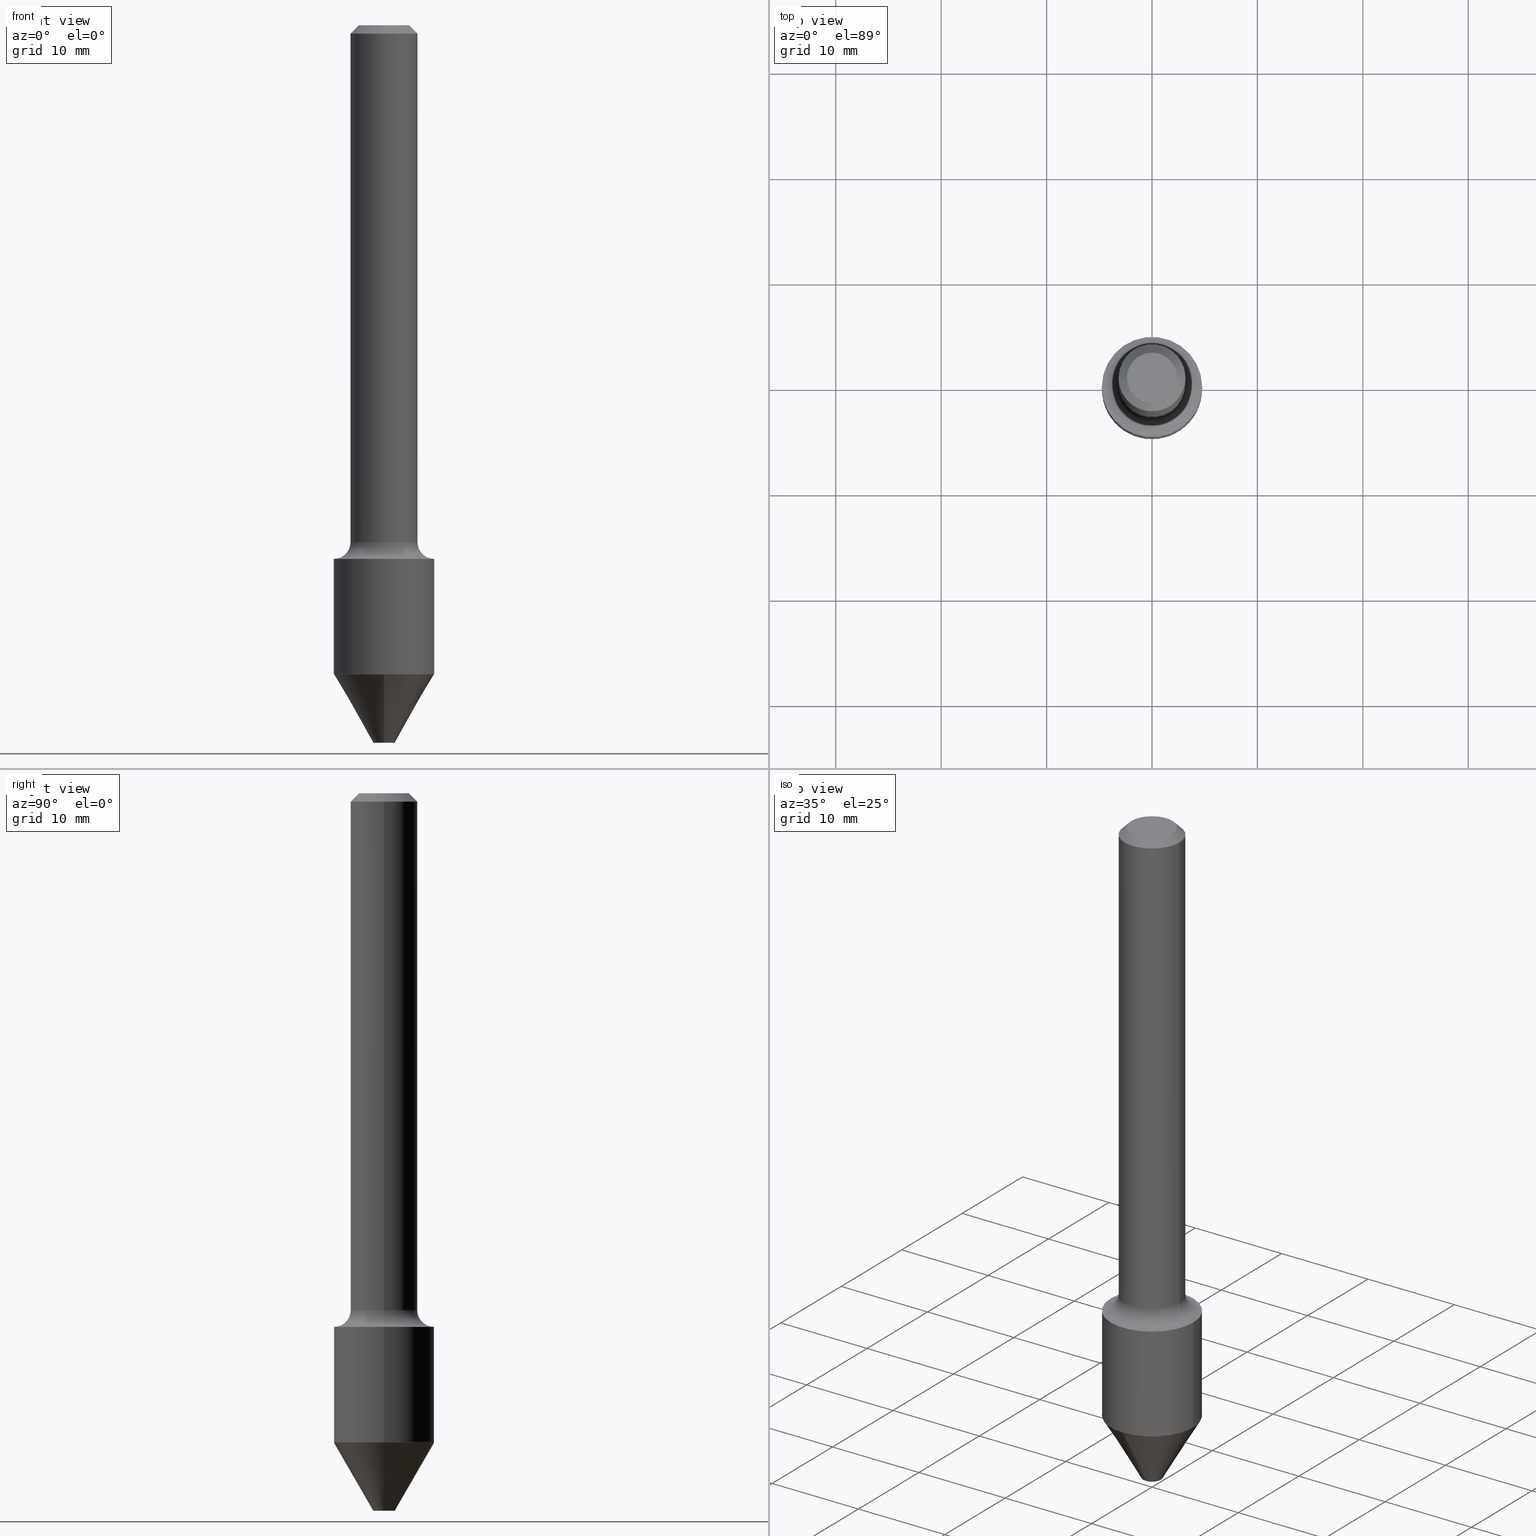
[diagram: canonical four-view strip — front | top / right | iso, engineering-drawing reading convention]
A machine part, canonical four-view strip (front | top / right | iso — engineering-drawing reading convention). The complete STEP part file that produces these views, byte-faithful:
ISO-10303-21;
HEADER;
FILE_DESCRIPTION (( 'STEP AP203' ),
    '1' );
FILE_NAME ('74158.STEP',
    '2025-06-20T12:29:18',
    ( '' ),
    ( '' ),
    'SwSTEP 2.0',
    'SolidWorks 2024',
    '' );
FILE_SCHEMA (( 'CONFIG_CONTROL_DESIGN' ));
ENDSEC;

DATA;
#1 = ORIENTED_EDGE ( 'NONE', *, *, #184, .F. ) ;
#2 = ORIENTED_EDGE ( 'NONE', *, *, #460, .T. ) ;
#3 = DIRECTION ( 'NONE',  ( 1.000000000000000000, 0.000000000000000000, 0.000000000000000000 ) ) ;
#4 = ORIENTED_EDGE ( 'NONE', *, *, #159, .T. ) ;
#5 = EDGE_CURVE ( 'NONE', #251, #61, #124, .T. ) ;
#6 = APPROVAL_STATUS ( 'not_yet_approved' ) ;
#7 = ORIENTED_EDGE ( 'NONE', *, *, #342, .F. ) ;
#8 = CIRCLE ( 'NONE', #180, 0.1874999999999999445 ) ;
#9 = CONICAL_SURFACE ( 'NONE', #277, 0.1869999999999999440, 0.7853981633975849475 ) ;
#10 = PERSON_AND_ORGANIZATION_ROLE ( 'creator' ) ;
#11 = CARTESIAN_POINT ( 'NONE',  ( 5.864729909042874648E-29, -8.553851586907751688E-15, -2.424022505883614897 ) ) ;
#12 = DIRECTION ( 'NONE',  ( 6.982962677686265133E-15, 1.000000000000000000, -2.921762560068727834E-15 ) ) ;
#13 = ORIENTED_EDGE ( 'NONE', *, *, #314, .F. ) ;
#14 = ORIENTED_EDGE ( 'NONE', *, *, #491, .T. ) ;
#15 = FACE_OUTER_BOUND ( 'NONE', #378, .T. ) ;
#16 = ORIENTED_EDGE ( 'NONE', *, *, #5, .F. ) ;
#17 = PRODUCT_DEFINITION_SHAPE ( 'NONE', 'NONE',  #261 ) ;
#18 = DIRECTION ( 'NONE',  ( 1.000000000000000000, -6.982962677686261977E-15, 0.000000000000000000 ) ) ;
#19 = DIRECTION ( 'NONE',  ( -1.000000000000000000, 6.982962677686266711E-15, 0.000000000000000000 ) ) ;
#20 = AXIS2_PLACEMENT_3D ( 'NONE', #113, #279, #48 ) ;
#21 = EDGE_CURVE ( 'NONE', #61, #251, #110, .T. ) ;
#22 = CLOSED_SHELL ( 'NONE', ( #452, #489, #315, #150, #87, #166 ) ) ;
#23 = CARTESIAN_POINT ( 'NONE',  ( 7.629862675297676574E-31, -1.089342177719068640E-16, -0.03120000000000020673 ) ) ;
#24 = CARTESIAN_POINT ( 'NONE',  ( 0.09379999999999999449, -8.050055898421590350E-16, -1.530808498933680906E-17 ) ) ;
#25 = DIRECTION ( 'NONE',  ( -2.445468806185136597E-29, 3.491481338843145583E-15, 1.000000000000000000 ) ) ;
#26 = EDGE_CURVE ( 'NONE', #53, #495, #51, .T. ) ;
#27 = CARTESIAN_POINT ( 'NONE',  ( 1.305814020727391757E-15, 0.1869999999999916451, -2.424022505883615342 ) ) ;
#28 = CIRCLE ( 'NONE', #121, 0.1870000000000001938 ) ;
#29 = PERSON_AND_ORGANIZATION ( #131, #181 ) ;
#30 = AXIS2_PLACEMENT_3D ( 'NONE', #440, #280, #123 ) ;
#31 = FACE_OUTER_BOUND ( 'NONE', #354, .T. ) ;
#32 = CYLINDRICAL_SURFACE ( 'NONE', #116, 0.1874999999999999722 ) ;
#33 = VERTEX_POINT ( 'NONE', #187 ) ;
#34 = CIRCLE ( 'NONE', #374, 0.09379999999999999449 ) ;
#35 = DIRECTION ( 'NONE',  ( 6.982962677686265922E-15, 1.000000000000000000, -3.285367342612894340E-15 ) ) ;
#36 = LOCAL_TIME ( 8, 29, 18.00000000000000000, #54 ) ;
#37 = CC_DESIGN_PERSON_AND_ORGANIZATION_ASSIGNMENT ( #179, #327, ( #295 ) ) ;
#38 = CARTESIAN_POINT ( 'NONE',  ( -0.1250000000000001110, 8.881784197001260212E-16, -6.148668862818637832E-30 ) ) ;
#39 = APPROVAL_DATE_TIME ( #473, #406 ) ;
#40 = APPROVAL_STATUS ( 'not_yet_approved' ) ;
#41 = DIRECTION ( 'NONE',  ( 3.552713678800714711E-15, 0.5000000000000361933, 0.8660254037844177244 ) ) ;
#42 = EDGE_CURVE ( 'NONE', #415, #251, #504, .T. ) ;
#43 = CALENDAR_DATE ( 2025, 20, 6 ) ;
#44 = CONICAL_SURFACE ( 'NONE', #407, 0.1869999999999999440, 0.7853981633975849475 ) ;
#45 = VERTEX_POINT ( 'NONE', #496 ) ;
#46 =( NAMED_UNIT ( * ) PLANE_ANGLE_UNIT ( ) SI_UNIT ( $, .RADIAN. ) );
#47 = DIRECTION ( 'NONE',  ( -2.445468806185136877E-29, 3.491481338843145188E-15, 1.000000000000000000 ) ) ;
#48 = DIRECTION ( 'NONE',  ( -6.982962677686267499E-15, -1.000000000000000000, 0.000000000000000000 ) ) ;
#49 = ORIENTED_EDGE ( 'NONE', *, *, #316, .F. ) ;
#50 = CARTESIAN_POINT ( 'NONE',  ( -0.1250000000000002498, -5.739190491850385263E-15, -1.930500000000000549 ) ) ;
#51 = LINE ( 'NONE', #377, #86 ) ;
#52 = CARTESIAN_POINT ( 'NONE',  ( -0.1250000000000000000, 7.639361169388764871E-16, -0.03120000000000020673 ) ) ;
#53 = VERTEX_POINT ( 'NONE', #286 ) ;
#54 = COORDINATED_UNIVERSAL_TIME_OFFSET ( 5, 0, .BEHIND. ) ;
#55 = ORIENTED_EDGE ( 'NONE', *, *, #184, .T. ) ;
#56 = CARTESIAN_POINT ( 'NONE',  ( 0.1874999999999999722, -1.309305502066174811E-15, 9.142831454617378210E-30 ) ) ;
#57 = ORIENTED_EDGE ( 'NONE', *, *, #419, .F. ) ;
#58 = CIRCLE ( 'NONE', #200, 0.1869999999999999440 ) ;
#59 = CONICAL_SURFACE ( 'NONE', #30, 0.1874999999999999445, 0.5235987755983373404 ) ;
#60 = DIRECTION ( 'NONE',  ( -4.851104656541626129E-15, -0.7071067811866464936, -0.7071067811864485408 ) ) ;
#61 = VERTEX_POINT ( 'NONE', #446 ) ;
#62 = CARTESIAN_POINT ( 'NONE',  ( 0.000000000000000000, 0.000000000000000000, 0.000000000000000000 ) ) ;
#63 = ORIENTED_EDGE ( 'NONE', *, *, #42, .T. ) ;
#64 = ADVANCED_FACE ( 'NONE', ( #412 ), #349, .F. ) ;
#65 = ORIENTED_EDGE ( 'NONE', *, *, #480, .F. ) ;
#66 = ADVANCED_FACE ( 'NONE', ( #385 ), #508, .T. ) ;
#67 = FACE_OUTER_BOUND ( 'NONE', #188, .T. ) ;
#68 = CONICAL_SURFACE ( 'NONE', #355, 0.1870000000000001938, 0.7853981633975849475 ) ;
#69 = ADVANCED_FACE ( 'NONE', ( #390 ), #474, .F. ) ;
#70 = DIRECTION ( 'NONE',  ( 1.000000000000000000, -6.982962677686267499E-15, 4.883557194083113462E-29 ) ) ;
#71 = EDGE_CURVE ( 'NONE', #88, #482, #328, .T. ) ;
#72 = DIRECTION ( 'NONE',  ( -2.589397440487598064E-29, 3.285367342612894340E-15, 1.000000000000000000 ) ) ;
#73 = CARTESIAN_POINT ( 'NONE',  ( -1.900850965778914707E-28, -4.596393310320073296E-14, -2.680000000000001048 ) ) ;
#74 = LINE ( 'NONE', #27, #153 ) ;
#75 = CIRCLE ( 'NONE', #430, 0.1250000000000000000 ) ;
#76 = CC_DESIGN_PERSON_AND_ORGANIZATION_ASSIGNMENT ( #257, #274, ( #346 ) ) ;
#77 = DIRECTION ( 'NONE',  ( 1.000000000000000000, -6.982962677686264344E-15, 0.000000000000000000 ) ) ;
#78 = EDGE_CURVE ( 'NONE', #288, #53, #132, .T. ) ;
#79 = LINE ( 'NONE', #357, #486 ) ;
#80 = ORIENTED_EDGE ( 'NONE', *, *, #21, .F. ) ;
#81 = AXIS2_PLACEMENT_3D ( 'NONE', #269, #343, #309 ) ;
#82 = CARTESIAN_POINT ( 'NONE',  ( 7.629862675297676574E-31, -1.089342177719068640E-16, -0.03120000000000020673 ) ) ;
#83 = LOCAL_TIME ( 8, 29, 18.00000000000000000, #158 ) ;
#84 = ADVANCED_FACE ( 'NONE', ( #67 ), #404, .T. ) ;
#85 = DATE_AND_TIME ( #437, #389 ) ;
#86 = VECTOR ( 'NONE', #60, 39.37007874015748143 ) ;
#87 = ADVANCED_FACE ( 'NONE', ( #31 ), #434, .T. ) ;
#88 = VERTEX_POINT ( 'NONE', #24 ) ;
#89 = VERTEX_POINT ( 'NONE', #115 ) ;
#90 = DIRECTION ( 'NONE',  ( 1.000000000000000000, -6.982962677686266711E-15, 4.876421767504995250E-29 ) ) ;
#91 = CARTESIAN_POINT ( 'NONE',  ( 1.307559761396812669E-15, 0.1869999999999916451, -2.424022505883615342 ) ) ;
#92 = DIRECTION ( 'NONE',  ( -6.982962677686265133E-15, -1.000000000000000000, 2.921762560068727834E-15 ) ) ;
#93 = TOROIDAL_SURFACE ( 'NONE', #382, 0.1874999999999999722, 0.06249999999999970857 ) ;
#94 = ORIENTED_EDGE ( 'NONE', *, *, #342, .T. ) ;
#95 = APPLICATION_PROTOCOL_DEFINITION ( 'international standard', 'config_control_design', 1994, #398 ) ;
#96 = CARTESIAN_POINT ( 'NONE',  ( 4.873819330726977897E-29, -6.958522308314390115E-15, -1.993000000000000327 ) ) ;
#97 = ORIENTED_EDGE ( 'NONE', *, *, #353, .F. ) ;
#98 = DATE_AND_TIME ( #449, #36 ) ;
#99 = DIRECTION ( 'NONE',  ( -2.445468806185136597E-29, 3.491481338843145583E-15, 1.000000000000000000 ) ) ;
#100 = ORIENTED_EDGE ( 'NONE', *, *, #42, .F. ) ;
#101 = ORIENTED_EDGE ( 'NONE', *, *, #78, .F. ) ;
#102 = FACE_OUTER_BOUND ( 'NONE', #139, .T. ) ;
#103 = EDGE_LOOP ( 'NONE', ( #176, #178 ) ) ;
#104 = CONICAL_SURFACE ( 'NONE', #242, 0.1250000000000000000, 0.7853981633974452814 ) ;
#105 = DIRECTION ( 'NONE',  ( 1.000000000000000000, -6.982962677686266711E-15, 0.000000000000000000 ) ) ;
#106 = DIRECTION ( 'NONE',  ( 6.982962677686265133E-15, 1.000000000000000000, -2.921762560068727834E-15 ) ) ;
#107 = AXIS2_PLACEMENT_3D ( 'NONE', #463, #347, #190 ) ;
#108 = DIRECTION ( 'NONE',  ( -2.445468806185136597E-29, 3.491481338843145583E-15, 1.000000000000000000 ) ) ;
#109 = SECURITY_CLASSIFICATION ( '', '', #312 ) ;
#110 = CIRCLE ( 'NONE', #307, 0.1874999999999999722 ) ;
#111 = DIRECTION ( 'NONE',  ( 1.000000000000000000, -6.982962677686265922E-15, 4.876176775795935793E-29 ) ) ;
#112 = CARTESIAN_POINT ( 'NONE',  ( 5.927871423629107116E-29, -8.463429344228440066E-15, -2.424022505883614897 ) ) ;
#113 = CARTESIAN_POINT ( 'NONE',  ( 6.527557377130273734E-29, -9.394831686521610282E-15, -2.680000000000001048 ) ) ;
#114 = CARTESIAN_POINT ( 'NONE',  ( 4.720977530340407980E-29, -6.740304724636694281E-15, -1.930500000000000549 ) ) ;
#115 = CARTESIAN_POINT ( 'NONE',  ( 8.082423619271767035E-16, 0.03999999999999077210, -2.680000000000001048 ) ) ;
#116 = AXIS2_PLACEMENT_3D ( 'NONE', #119, #469, #313 ) ;
#117 = PERSON_AND_ORGANIZATION ( #131, #181 ) ;
#118 = EDGE_CURVE ( 'NONE', #454, #495, #216, .T. ) ;
#119 = CARTESIAN_POINT ( 'NONE',  ( 0.000000000000000000, 0.000000000000000000, 0.000000000000000000 ) ) ;
#120 = ADVANCED_FACE ( 'NONE', ( #503 ), #341, .T. ) ;
#121 = AXIS2_PLACEMENT_3D ( 'NONE', #11, #72, #92 ) ;
#122 = CC_DESIGN_APPROVAL ( #300, ( #346 ) ) ;
#123 = DIRECTION ( 'NONE',  ( -6.982962677686266711E-15, -1.000000000000000000, 2.913971193241881555E-15 ) ) ;
#124 = CIRCLE ( 'NONE', #265, 0.1874999999999999722 ) ;
#125 = DIRECTION ( 'NONE',  ( 1.000000000000000000, -6.982962677686263555E-15, 0.000000000000000000 ) ) ;
#126 = EDGE_LOOP ( 'NONE', ( #14, #220 ) ) ;
#127 = DIRECTION ( 'NONE',  ( -2.445468806185136877E-29, 3.491481338843145188E-15, 1.000000000000000000 ) ) ;
#128 = ORIENTED_EDGE ( 'NONE', *, *, #136, .F. ) ;
#129 = ORIENTED_EDGE ( 'NONE', *, *, #177, .T. ) ;
#130 = CARTESIAN_POINT ( 'NONE',  ( -0.1869999999999999440, -7.132065201182941915E-15, -2.424022505883614897 ) ) ;
#131 = PERSON ( 'UNSPECIFIED', 'UNSPECIFIED', 'UNSPECIFIED', ('UNSPECIFIED'), ('UNSPECIFIED'), ('UNSPECIFIED') ) ;
#132 = CIRCLE ( 'NONE', #424, 0.1870000000000001938 ) ;
#133 = AXIS2_PLACEMENT_3D ( 'NONE', #306, #264, #111 ) ;
#134 = ORIENTED_EDGE ( 'NONE', *, *, #208, .T. ) ;
#135 = PERSON_AND_ORGANIZATION ( #131, #181 ) ;
#136 = EDGE_CURVE ( 'NONE', #45, #293, #396, .T. ) ;
#137 = DIRECTION ( 'NONE',  ( 1.000000000000000000, -6.982962677686263555E-15, 0.000000000000000000 ) ) ;
#138 = DIRECTION ( 'NONE',  ( 2.589397440487598064E-29, -3.285367342612894340E-15, -1.000000000000000000 ) ) ;
#139 = EDGE_LOOP ( 'NONE', ( #320, #94, #417, #100 ) ) ;
#140 = DIRECTION ( 'NONE',  ( -2.445468806185136597E-29, 3.491481338843145583E-15, 1.000000000000000000 ) ) ;
#141 = EDGE_LOOP ( 'NONE', ( #134, #450, #97, #282 ) ) ;
#142 = EDGE_LOOP ( 'NONE', ( #255, #380 ) ) ;
#143 = ADVANCED_FACE ( 'NONE', ( #228 ), #154, .F. ) ;
#144 = AXIS2_PLACEMENT_3D ( 'NONE', #151, #197, #427 ) ;
#145 = CIRCLE ( 'NONE', #518, 0.1874999999999999722 ) ;
#146 = DIRECTION ( 'NONE',  ( -2.445468806185136597E-29, 3.491481338843145583E-15, 1.000000000000000000 ) ) ;
#147 = ORIENTED_EDGE ( 'NONE', *, *, #391, .T. ) ;
#148 = CARTESIAN_POINT ( 'NONE',  ( 5.866024607763117522E-29, -8.555494270579057560E-15, -2.424522505883614620 ) ) ;
#149 = CC_DESIGN_DATE_AND_TIME_ASSIGNMENT ( #344, #387, ( #109 ) ) ;
#150 = ADVANCED_FACE ( 'NONE', ( #308 ), #267, .T. ) ;
#151 = CARTESIAN_POINT ( 'NONE',  ( 6.550018991669718048E-16, 0.09379999999999999449, -3.351549920781579832E-16 ) ) ;
#152 = AXIS2_PLACEMENT_3D ( 'NONE', #191, #507, #70 ) ;
#153 = VECTOR ( 'NONE', #431, 39.37007874015748143 ) ;
#154 = PLANE ( 'NONE',  #133 ) ;
#155 = DIRECTION ( 'NONE',  ( -2.445468806185136597E-29, 3.491481338843145583E-15, 1.000000000000000000 ) ) ;
#156 = DIRECTION ( 'NONE',  ( 1.000000000000000000, -6.982962677686261977E-15, 0.000000000000000000 ) ) ;
#157 = EDGE_CURVE ( 'NONE', #288, #454, #74, .T. ) ;
#158 = COORDINATED_UNIVERSAL_TIME_OFFSET ( 5, 0, .BEHIND. ) ;
#159 = EDGE_CURVE ( 'NONE', #495, #454, #8, .T. ) ;
#160 = ORIENTED_EDGE ( 'NONE', *, *, #118, .F. ) ;
#161 = AXIS2_PLACEMENT_3D ( 'NONE', #502, #108, #156 ) ;
#162 = CARTESIAN_POINT ( 'NONE',  ( 5.926648689226014314E-29, -8.461683603559019351E-15, -2.423522505883615175 ) ) ;
#163 = ORIENTED_EDGE ( 'NONE', *, *, #229, .T. ) ;
#164 = EDGE_CURVE ( 'NONE', #514, #415, #317, .T. ) ;
#165 = DIRECTION ( 'NONE',  ( -0.7071067811866441621, 7.493145998870704414E-15, 0.7071067811864508723 ) ) ;
#166 = ADVANCED_FACE ( 'NONE', ( #232 ), #338, .T. ) ;
#167 = DIRECTION ( 'NONE',  ( 2.589397440487597503E-29, -3.285367342612894340E-15, -1.000000000000000000 ) ) ;
#168 = DIRECTION ( 'NONE',  ( -2.445468806185136597E-29, 3.491481338843145583E-15, 1.000000000000000000 ) ) ;
#169 = CIRCLE ( 'NONE', #456, 0.1250000000000000000 ) ;
#170 = CARTESIAN_POINT ( 'NONE',  ( 5.926648689226014314E-29, -8.461683603559019351E-15, -2.423522505883615175 ) ) ;
#171 = LOCAL_TIME ( 8, 29, 18.00000000000000000, #478 ) ;
#172 = DIRECTION ( 'NONE',  ( 1.000000000000000000, -6.982962677686261977E-15, 0.000000000000000000 ) ) ;
#173 = CARTESIAN_POINT ( 'NONE',  ( 0.1869999999999999440, -9.769243364955772067E-15, -2.424022505883614897 ) ) ;
#174 = EDGE_LOOP ( 'NONE', ( #13, #370, #488, #405 ) ) ;
#175 =( NAMED_UNIT ( * ) SI_UNIT ( $, .STERADIAN. ) SOLID_ANGLE_UNIT ( ) );
#176 = ORIENTED_EDGE ( 'NONE', *, *, #506, .F. ) ;
#177 = EDGE_CURVE ( 'NONE', #205, #495, #500, .T. ) ;
#178 = ORIENTED_EDGE ( 'NONE', *, *, #413, .F. ) ;
#179 = PERSON_AND_ORGANIZATION ( #131, #181 ) ;
#180 = AXIS2_PLACEMENT_3D ( 'NONE', #148, #465, #194 ) ;
#181 = ORGANIZATION ( 'UNSPECIFIED', 'UNSPECIFIED', '' ) ;
#182 = ORIENTED_EDGE ( 'NONE', *, *, #266, .F. ) ;
#183 = COORDINATED_UNIVERSAL_TIME_OFFSET ( 5, 0, .BEHIND. ) ;
#184 = EDGE_CURVE ( 'NONE', #292, #321, #304, .T. ) ;
#185 = LINE ( 'NONE', #291, #425 ) ;
#186 = ORIENTED_EDGE ( 'NONE', *, *, #432, .F. ) ;
#187 = CARTESIAN_POINT ( 'NONE',  ( 0.1250000000000000000, -9.664964674933483956E-16, -0.03120000000000020673 ) ) ;
#188 = EDGE_LOOP ( 'NONE', ( #65, #421, #299, #147 ) ) ;
#189 = MANIFOLD_SOLID_BREP ( 'Body-Move/Copy2[1]', #22 ) ;
#190 = DIRECTION ( 'NONE',  ( -6.982962677686266711E-15, -1.000000000000000000, 2.913971193241881555E-15 ) ) ;
#191 = CARTESIAN_POINT ( 'NONE',  ( 4.720977530340407980E-29, -6.740304724636694281E-15, -1.930500000000000549 ) ) ;
#192 = CARTESIAN_POINT ( 'NONE',  ( 7.629862675297676574E-31, -1.089342177719068640E-16, -0.03120000000000020673 ) ) ;
#193 = AXIS2_PLACEMENT_3D ( 'NONE', #262, #196, #350 ) ;
#194 = DIRECTION ( 'NONE',  ( -6.982962677686266711E-15, -1.000000000000000000, 2.913971193241881555E-15 ) ) ;
#195 = CC_DESIGN_SECURITY_CLASSIFICATION ( #109, ( #346 ) ) ;
#196 = DIRECTION ( 'NONE',  ( -2.445468806185136597E-29, 3.491481338843145583E-15, 1.000000000000000000 ) ) ;
#197 = DIRECTION ( 'NONE',  ( 2.438088387897960049E-29, -3.491481338843145188E-15, -1.000000000000000000 ) ) ;
#198 = LINE ( 'NONE', #510, #345 ) ;
#199 = ORIENTED_EDGE ( 'NONE', *, *, #177, .F. ) ;
#200 = AXIS2_PLACEMENT_3D ( 'NONE', #112, #155, #464 ) ;
#201 = EDGE_CURVE ( 'NONE', #53, #288, #28, .T. ) ;
#202 = VECTOR ( 'NONE', #127, 39.37007874015748143 ) ;
#203 = SHAPE_DEFINITION_REPRESENTATION ( #17, #509 ) ;
#204 = APPROVAL_STATUS ( 'not_yet_approved' ) ;
#205 = VERTEX_POINT ( 'NONE', #403 ) ;
#206 = CARTESIAN_POINT ( 'NONE',  ( -0.1874999999999999722, -6.377835326386517279E-15, -2.423522505883615175 ) ) ;
#207 = ORIENTED_EDGE ( 'NONE', *, *, #157, .F. ) ;
#208 = EDGE_CURVE ( 'NONE', #415, #514, #270, .T. ) ;
#209 = ORIENTED_EDGE ( 'NONE', *, *, #26, .T. ) ;
#210 = MECHANICAL_CONTEXT ( 'NONE', #398, 'mechanical' ) ;
#211 = CARTESIAN_POINT ( 'NONE',  ( 1.332267629550245633E-15, 0.1874999999999913403, -2.424522505883615064 ) ) ;
#212 = ORIENTED_EDGE ( 'NONE', *, *, #71, .F. ) ;
#213 = AXIS2_PLACEMENT_3D ( 'NONE', #192, #384, #19 ) ;
#214 = APPROVAL_DATE_TIME ( #98, #241 ) ;
#215 = EDGE_CURVE ( 'NONE', #293, #45, #58, .T. ) ;
#216 = CIRCLE ( 'NONE', #81, 0.1874999999999999445 ) ;
#217 = LINE ( 'NONE', #375, #202 ) ;
#218 = APPROVAL_PERSON_ORGANIZATION ( #400, #300, #360 ) ;
#219 = ORIENTED_EDGE ( 'NONE', *, *, #118, .T. ) ;
#220 = ORIENTED_EDGE ( 'NONE', *, *, #71, .T. ) ;
#221 = ORIENTED_EDGE ( 'NONE', *, *, #159, .F. ) ;
#222 = DIRECTION ( 'NONE',  ( -2.445468806185136597E-29, 3.491481338843145583E-15, 1.000000000000000000 ) ) ;
#223 = CARTESIAN_POINT ( 'NONE',  ( 5.927871423629107116E-29, -8.463429344228440066E-15, -2.424022505883614897 ) ) ;
#224 = DIRECTION ( 'NONE',  ( -6.982962677686266711E-15, -1.000000000000000000, 3.491481338843145583E-15 ) ) ;
#225 = DIRECTION ( 'NONE',  ( -2.589397440487598064E-29, 3.285367342612894340E-15, 1.000000000000000000 ) ) ;
#226 = ADVANCED_FACE ( 'NONE', ( #393 ), #32, .T. ) ;
#227 = CARTESIAN_POINT ( 'NONE',  ( 5.864729909042874648E-29, -8.553851586907751688E-15, -2.424022505883614897 ) ) ;
#228 = FACE_OUTER_BOUND ( 'NONE', #512, .T. ) ;
#229 = EDGE_CURVE ( 'NONE', #293, #292, #198, .T. ) ;
#230 = DIRECTION ( 'NONE',  ( -2.445468806185136597E-29, 3.491481338843145583E-15, 1.000000000000000000 ) ) ;
#231 = CC_DESIGN_APPROVAL ( #241, ( #261 ) ) ;
#232 = FACE_OUTER_BOUND ( 'NONE', #494, .T. ) ;
#233 = CALENDAR_DATE ( 2025, 20, 6 ) ;
#234 = CARTESIAN_POINT ( 'NONE',  ( 3.455058324853746154E-29, -1.200463844545580190E-14, -2.424022505883614897 ) ) ;
#235 = ORIENTED_EDGE ( 'NONE', *, *, #201, .F. ) ;
#236 = VECTOR ( 'NONE', #268, 39.37007874015748143 ) ;
#237 = DATE_TIME_ROLE ( 'creation_date' ) ;
#238 =( CONVERSION_BASED_UNIT ( 'INCH', #245 ) LENGTH_UNIT ( ) NAMED_UNIT ( #283 ) );
#239 = EDGE_LOOP ( 'NONE', ( #182, #55, #2, #80 ) ) ;
#240 = FACE_OUTER_BOUND ( 'NONE', #246, .T. ) ;
#241 = APPROVAL ( #40, 'UNSPECIFIED' ) ;
#242 = AXIS2_PLACEMENT_3D ( 'NONE', #82, #433, #402 ) ;
#243 = LINE ( 'NONE', #173, #475 ) ;
#244 = ORIENTED_EDGE ( 'NONE', *, *, #26, .F. ) ;
#245 = LENGTH_MEASURE_WITH_UNIT ( LENGTH_MEASURE( 0.02539999999999999897 ), #408 );
#246 = EDGE_LOOP ( 'NONE', ( #453, #163, #49, #455 ) ) ;
#247 = ADVANCED_FACE ( 'NONE', ( #365 ), #104, .T. ) ;
#248 = CARTESIAN_POINT ( 'NONE',  ( 3.743544432386658428E-46, -5.344789307371216869E-32, -1.530808498934191509E-17 ) ) ;
#249 = DIRECTION ( 'NONE',  ( -2.445468806185136597E-29, 3.491481338843145583E-15, 1.000000000000000000 ) ) ;
#250 = ORIENTED_EDGE ( 'NONE', *, *, #157, .T. ) ;
#251 = VERTEX_POINT ( 'NONE', #275 ) ;
#252 = APPLICATION_CONTEXT ( 'configuration controlled 3d designs of mechanical parts and assemblies' ) ;
#253 = VECTOR ( 'NONE', #47, 39.37007874015748143 ) ;
#254 = CARTESIAN_POINT ( 'NONE',  ( 5.864729909042874648E-29, -8.553851586907751688E-15, -2.424022505883614897 ) ) ;
#255 = ORIENTED_EDGE ( 'NONE', *, *, #78, .T. ) ;
#256 = APPROVAL_ROLE ( '' ) ;
#257 = PERSON_AND_ORGANIZATION ( #131, #181 ) ;
#258 = FACE_OUTER_BOUND ( 'NONE', #485, .T. ) ;
#259 = DIRECTION ( 'NONE',  ( 1.000000000000000000, -6.982962677686269077E-15, 0.000000000000000000 ) ) ;
#260 = CARTESIAN_POINT ( 'NONE',  ( 0.000000000000000000, 0.000000000000000000, 0.000000000000000000 ) ) ;
#261 = PRODUCT_DEFINITION ( 'UNKNOWN', '', #346, #401 ) ;
#262 = CARTESIAN_POINT ( 'NONE',  ( 4.720977530340407980E-29, -6.740304724636694281E-15, -1.930500000000000549 ) ) ;
#263 = VECTOR ( 'NONE', #441, 39.37007874015748143 ) ;
#264 = DIRECTION ( 'NONE',  ( -2.438088387897960049E-29, 3.491481338843145188E-15, 1.000000000000000000 ) ) ;
#265 = AXIS2_PLACEMENT_3D ( 'NONE', #290, #323, #259 ) ;
#266 = EDGE_CURVE ( 'NONE', #292, #61, #361, .T. ) ;
#267 = PLANE ( 'NONE',  #373 ) ;
#268 = DIRECTION ( 'NONE',  ( -3.491481338843388157E-15, -0.5000000000000304201, 0.8660254037844210551 ) ) ;
#269 = CARTESIAN_POINT ( 'NONE',  ( 5.866024607763117522E-29, -8.555494270579057560E-15, -2.424522505883614620 ) ) ;
#270 = CIRCLE ( 'NONE', #193, 0.1250000000000002498 ) ;
#271 = CARTESIAN_POINT ( 'NONE',  ( 0.000000000000000000, 0.000000000000000000, 0.000000000000000000 ) ) ;
#272 = COORDINATED_UNIVERSAL_TIME_OFFSET ( 5, 0, .BEHIND. ) ;
#273 = PRODUCT_RELATED_PRODUCT_CATEGORY ( 'detail', '', ( #295 ) ) ;
#274 = PERSON_AND_ORGANIZATION_ROLE ( 'design_supplier' ) ;
#275 = CARTESIAN_POINT ( 'NONE',  ( 0.1874999999999999722, -8.267827810380565912E-15, -1.993000000000000327 ) ) ;
#276 = AXIS2_PLACEMENT_3D ( 'NONE', #271, #467, #302 ) ;
#277 = AXIS2_PLACEMENT_3D ( 'NONE', #493, #140, #172 ) ;
#278 = UNCERTAINTY_MEASURE_WITH_UNIT (LENGTH_MEASURE( 1.000000000000000082E-05 ), #238, 'distance_accuracy_value', 'NONE');
#279 = DIRECTION ( 'NONE',  ( -2.589397440487598064E-29, 3.285367342612894340E-15, 1.000000000000000000 ) ) ;
#280 = DIRECTION ( 'NONE',  ( -2.589397440487598064E-29, 3.285367342612894340E-15, 1.000000000000000000 ) ) ;
#281 = DIRECTION ( 'NONE',  ( 7.105427357601001859E-15, 1.000000000000000000, -3.491481338843145583E-15 ) ) ;
#282 = ORIENTED_EDGE ( 'NONE', *, *, #481, .F. ) ;
#283 = DIMENSIONAL_EXPONENTS ( 1.000000000000000000, 0.000000000000000000, 0.000000000000000000, 0.000000000000000000, 0.000000000000000000, 0.000000000000000000, 0.000000000000000000 ) ;
#284 = FACE_OUTER_BOUND ( 'NONE', #451, .T. ) ;
#285 = EDGE_LOOP ( 'NONE', ( #7, #479, #63, #448 ) ) ;
#286 = CARTESIAN_POINT ( 'NONE',  ( -1.284628250082660840E-15, -0.1870000000000087148, -2.424022505883614453 ) ) ;
#287 = VECTOR ( 'NONE', #368, 39.37007874015748143 ) ;
#288 = VERTEX_POINT ( 'NONE', #91 ) ;
#289 = APPROVAL_ROLE ( '' ) ;
#290 = CARTESIAN_POINT ( 'NONE',  ( 4.873819330726977897E-29, -6.958522308314390115E-15, -1.993000000000000327 ) ) ;
#291 = CARTESIAN_POINT ( 'NONE',  ( 0.1250000000000000000, -9.664964674933483956E-16, -0.03120000000000020673 ) ) ;
#292 = VERTEX_POINT ( 'NONE', #206 ) ;
#293 = VERTEX_POINT ( 'NONE', #130 ) ;
#294 = ORIENTED_EDGE ( 'NONE', *, *, #413, .T. ) ;
#295 = PRODUCT ( '74158', '74158', '', ( #210 ) ) ;
#296 = VERTEX_POINT ( 'NONE', #438 ) ;
#297 = CC_DESIGN_PERSON_AND_ORGANIZATION_ASSIGNMENT ( #117, #394, ( #346 ) ) ;
#298 = AXIS2_PLACEMENT_3D ( 'NONE', #234, #167, #35 ) ;
#299 = ORIENTED_EDGE ( 'NONE', *, *, #432, .T. ) ;
#300 = APPROVAL ( #204, 'UNSPECIFIED' ) ;
#301 = CARTESIAN_POINT ( 'NONE',  ( 5.864729909042874648E-29, -8.553851586907751688E-15, -2.424022505883614897 ) ) ;
#302 = DIRECTION ( 'NONE',  ( 1.000000000000000000, -6.982962677686267499E-15, 4.876176775795936353E-29 ) ) ;
#303 = EDGE_CURVE ( 'NONE', #45, #321, #243, .T. ) ;
#304 = CIRCLE ( 'NONE', #329, 0.1874999999999999722 ) ;
#305 =( GEOMETRIC_REPRESENTATION_CONTEXT ( 3 ) GLOBAL_UNCERTAINTY_ASSIGNED_CONTEXT ( ( #278 ) ) GLOBAL_UNIT_ASSIGNED_CONTEXT ( ( #238, #46, #175 ) ) REPRESENTATION_CONTEXT ( 'NONE', 'WORKASPACE' ) );
#306 = CARTESIAN_POINT ( 'NONE',  ( 5.927871423629107116E-29, -8.463429344228440066E-15, -2.424022505883614897 ) ) ;
#307 = AXIS2_PLACEMENT_3D ( 'NONE', #96, #99, #418 ) ;
#308 = FACE_OUTER_BOUND ( 'NONE', #103, .T. ) ;
#309 = DIRECTION ( 'NONE',  ( -6.982962677686266711E-15, -1.000000000000000000, 2.913971193241881555E-15 ) ) ;
#310 = CALENDAR_DATE ( 2025, 20, 6 ) ;
#311 = VECTOR ( 'NONE', #332, 39.37007874015748143 ) ;
#312 = SECURITY_CLASSIFICATION_LEVEL ( 'unclassified' ) ;
#313 = DIRECTION ( 'NONE',  ( 1.000000000000000000, -6.982962677686266711E-15, 4.876176775795935793E-29 ) ) ;
#314 = EDGE_CURVE ( 'NONE', #514, #296, #399, .T. ) ;
#315 = ADVANCED_FACE ( 'NONE', ( #517 ), #515, .F. ) ;
#316 = EDGE_CURVE ( 'NONE', #321, #292, #145, .T. ) ;
#317 = CIRCLE ( 'NONE', #461, 0.1250000000000002498 ) ;
#318 = CARTESIAN_POINT ( 'NONE',  ( 6.527557377130273734E-29, -9.394831686521610282E-15, -2.680000000000001048 ) ) ;
#319 = APPROVAL_PERSON_ORGANIZATION ( #135, #241, #289 ) ;
#320 = ORIENTED_EDGE ( 'NONE', *, *, #164, .F. ) ;
#321 = VERTEX_POINT ( 'NONE', #356 ) ;
#322 = CARTESIAN_POINT ( 'NONE',  ( 0.000000000000000000, 0.000000000000000000, 0.000000000000000000 ) ) ;
#323 = DIRECTION ( 'NONE',  ( -2.445468806185136597E-29, 3.491481338843145583E-15, 1.000000000000000000 ) ) ;
#324 = CC_DESIGN_PERSON_AND_ORGANIZATION_ASSIGNMENT ( #466, #470, ( #109 ) ) ;
#325 = CARTESIAN_POINT ( 'NONE',  ( 0.1250000000000002498, -7.613175059347479197E-15, -1.930500000000000549 ) ) ;
#326 = ORIENTED_EDGE ( 'NONE', *, *, #316, .T. ) ;
#327 = PERSON_AND_ORGANIZATION_ROLE ( 'design_owner' ) ;
#328 = CIRCLE ( 'NONE', #429, 0.09379999999999999449 ) ;
#329 = AXIS2_PLACEMENT_3D ( 'NONE', #162, #331, #137 ) ;
#330 = AXIS2_PLACEMENT_3D ( 'NONE', #318, #516, #476 ) ;
#331 = DIRECTION ( 'NONE',  ( -2.445468806185136597E-29, 3.491481338843145583E-15, 1.000000000000000000 ) ) ;
#332 = DIRECTION ( 'NONE',  ( -0.7071067811865453523, 2.468850131082234184E-15, -0.7071067811865496822 ) ) ;
#333 = EDGE_LOOP ( 'NONE', ( #212, #439, #410, #186 ) ) ;
#334 = CARTESIAN_POINT ( 'NONE',  ( -1.309305502066116041E-15, -0.1875000000000085487, -2.424522505883614176 ) ) ;
#335 = ORIENTED_EDGE ( 'NONE', *, *, #266, .T. ) ;
#336 = DIRECTION ( 'NONE',  ( 1.000000000000000000, -6.982962677686267499E-15, 4.883557194083113462E-29 ) ) ;
#337 = ORIENTED_EDGE ( 'NONE', *, *, #215, .T. ) ;
#338 = CONICAL_SURFACE ( 'NONE', #511, 0.1870000000000001938, 0.7853981633975849475 ) ;
#339 = CARTESIAN_POINT ( 'NONE',  ( 7.629862675297676574E-31, -1.089342177719068640E-16, -0.03120000000000020673 ) ) ;
#340 = CARTESIAN_POINT ( 'NONE',  ( 3.743544432386658428E-46, -5.344789307371216869E-32, -1.530808498934191509E-17 ) ) ;
#341 = CYLINDRICAL_SURFACE ( 'NONE', #276, 0.1250000000000001110 ) ;
#342 = EDGE_CURVE ( 'NONE', #514, #61, #443, .T. ) ;
#343 = DIRECTION ( 'NONE',  ( -2.589397440487598064E-29, 3.285367342612894340E-15, 1.000000000000000000 ) ) ;
#344 = DATE_AND_TIME ( #233, #420 ) ;
#345 = VECTOR ( 'NONE', #165, 39.37007874015748143 ) ;
#346 = PRODUCT_DEFINITION_FORMATION_WITH_SPECIFIED_SOURCE ( 'ANY', '', #295, .NOT_KNOWN. ) ;
#347 = DIRECTION ( 'NONE',  ( -2.589397440487598064E-29, 3.285367342612894340E-15, 1.000000000000000000 ) ) ;
#348 = CLOSED_SHELL ( 'NONE', ( #120, #247, #501, #358, #445, #69, #226, #397, #143, #64, #84, #66 ) ) ;
#349 = PLANE ( 'NONE',  #144 ) ;
#350 = DIRECTION ( 'NONE',  ( 1.000000000000000000, -6.982962677686264344E-15, 0.000000000000000000 ) ) ;
#351 = MANIFOLD_SOLID_BREP ( 'Body-Move/Copy2[2]', #348 ) ;
#352 = DATE_AND_TIME ( #310, #83 ) ;
#353 = EDGE_CURVE ( 'NONE', #33, #296, #169, .T. ) ;
#354 = EDGE_LOOP ( 'NONE', ( #57, #294, #129, #160 ) ) ;
#355 = AXIS2_PLACEMENT_3D ( 'NONE', #254, #138, #12 ) ;
#356 = CARTESIAN_POINT ( 'NONE',  ( 0.1874999999999999722, -9.770989105625194359E-15, -2.423522505883615175 ) ) ;
#357 = CARTESIAN_POINT ( 'NONE',  ( 1.332267629550246027E-15, 0.1874999999999913680, -2.424522505883615064 ) ) ;
#358 = ADVANCED_FACE ( 'NONE', ( #15 ), #422, .T. ) ;
#359 = LINE ( 'NONE', #52, #311 ) ;
#360 = APPROVAL_ROLE ( '' ) ;
#361 = LINE ( 'NONE', #472, #263 ) ;
#362 = ORIENTED_EDGE ( 'NONE', *, *, #506, .T. ) ;
#363 = AXIS2_PLACEMENT_3D ( 'NONE', #62, #222, #379 ) ;
#364 = CIRCLE ( 'NONE', #330, 0.04000000000000016043 ) ;
#365 = FACE_OUTER_BOUND ( 'NONE', #333, .T. ) ;
#366 = ORIENTED_EDGE ( 'NONE', *, *, #460, .F. ) ;
#367 = ORIENTED_EDGE ( 'NONE', *, *, #303, .T. ) ;
#368 = DIRECTION ( 'NONE',  ( -2.445468806185136877E-29, 3.491481338843145188E-15, 1.000000000000000000 ) ) ;
#369 = CC_DESIGN_PERSON_AND_ORGANIZATION_ASSIGNMENT ( #371, #10, ( #261 ) ) ;
#370 = ORIENTED_EDGE ( 'NONE', *, *, #164, .T. ) ;
#371 = PERSON_AND_ORGANIZATION ( #131, #181 ) ;
#372 = CARTESIAN_POINT ( 'NONE',  ( 0.1874999999999999722, -8.049610226702869289E-15, -1.930500000000000549 ) ) ;
#373 = AXIS2_PLACEMENT_3D ( 'NONE', #73, #386, #499 ) ;
#374 = AXIS2_PLACEMENT_3D ( 'NONE', #248, #168, #90 ) ;
#375 = CARTESIAN_POINT ( 'NONE',  ( 0.1250000000000001110, -8.728703347107842263E-16, 6.095220969744926047E-30 ) ) ;
#376 = ORIENTED_EDGE ( 'NONE', *, *, #419, .T. ) ;
#377 = CARTESIAN_POINT ( 'NONE',  ( -1.282913125583218874E-15, -0.1870000000000087148, -2.424022505883614453 ) ) ;
#378 = EDGE_LOOP ( 'NONE', ( #326, #335, #16, #366 ) ) ;
#379 = DIRECTION ( 'NONE',  ( 1.000000000000000000, -6.982962677686266711E-15, 4.876176775795935793E-29 ) ) ;
#380 = ORIENTED_EDGE ( 'NONE', *, *, #201, .T. ) ;
#381 = DIRECTION ( 'NONE',  ( -2.445468806185136597E-29, 3.491481338843145583E-15, 1.000000000000000000 ) ) ;
#382 = AXIS2_PLACEMENT_3D ( 'NONE', #447, #249, #336 ) ;
#383 = DIRECTION ( 'NONE',  ( -1.000000000000000000, 7.105427357600997914E-15, 0.000000000000000000 ) ) ;
#384 = DIRECTION ( 'NONE',  ( 2.445468806185136597E-29, -3.491481338843145583E-15, -1.000000000000000000 ) ) ;
#385 = FACE_OUTER_BOUND ( 'NONE', #174, .T. ) ;
#386 = DIRECTION ( 'NONE',  ( 2.589397440487597503E-29, -3.285367342612894340E-15, -1.000000000000000000 ) ) ;
#387 = DATE_TIME_ROLE ( 'classification_date' ) ;
#388 = AXIS2_PLACEMENT_3D ( 'NONE', #513, #281, #383 ) ;
#389 = LOCAL_TIME ( 8, 29, 18.00000000000000000, #183 ) ;
#390 = FACE_OUTER_BOUND ( 'NONE', #285, .T. ) ;
#391 = EDGE_CURVE ( 'NONE', #296, #33, #75, .T. ) ;
#392 = CC_DESIGN_DATE_AND_TIME_ASSIGNMENT ( #85, #237, ( #261 ) ) ;
#393 = FACE_OUTER_BOUND ( 'NONE', #239, .T. ) ;
#394 = PERSON_AND_ORGANIZATION_ROLE ( 'creator' ) ;
#395 = AXIS2_PLACEMENT_3D ( 'NONE', #260, #25, #426 ) ;
#396 = CIRCLE ( 'NONE', #161, 0.1869999999999999440 ) ;
#397 = ADVANCED_FACE ( 'NONE', ( #258 ), #44, .T. ) ;
#398 = APPLICATION_CONTEXT ( 'configuration controlled 3d designs of mechanical parts and assemblies' ) ;
#399 = LINE ( 'NONE', #38, #253 ) ;
#400 = PERSON_AND_ORGANIZATION ( #131, #181 ) ;
#401 = DESIGN_CONTEXT ( 'detailed design', #252, 'design' ) ;
#402 = DIRECTION ( 'NONE',  ( -1.000000000000000000, 6.982962677686266711E-15, 0.000000000000000000 ) ) ;
#403 = CARTESIAN_POINT ( 'NONE',  ( -2.793185071073865340E-16, -0.04000000000000955569, -2.680000000000001048 ) ) ;
#404 = CONICAL_SURFACE ( 'NONE', #213, 0.1250000000000000000, 0.7853981633974452814 ) ;
#405 = ORIENTED_EDGE ( 'NONE', *, *, #391, .F. ) ;
#406 = APPROVAL ( #6, 'UNSPECIFIED' ) ;
#407 = AXIS2_PLACEMENT_3D ( 'NONE', #223, #381, #18 ) ;
#408 =( LENGTH_UNIT ( ) NAMED_UNIT ( * ) SI_UNIT ( $, .METRE. ) );
#409 = DIRECTION ( 'NONE',  ( 0.7071067811866441621, -2.468850131083269169E-15, 0.7071067811864508723 ) ) ;
#410 = ORIENTED_EDGE ( 'NONE', *, *, #353, .T. ) ;
#411 = CARTESIAN_POINT ( 'NONE',  ( -0.09379999999999999449, 7.094690080529240967E-16, -1.530808498934668523E-17 ) ) ;
#412 = FACE_OUTER_BOUND ( 'NONE', #126, .T. ) ;
#413 = EDGE_CURVE ( 'NONE', #89, #205, #498, .T. ) ;
#414 = LINE ( 'NONE', #56, #287 ) ;
#415 = VERTEX_POINT ( 'NONE', #325 ) ;
#416 = DIRECTION ( 'NONE',  ( 0.7071067811865453523, -7.319954787623248157E-15, -0.7071067811865496822 ) ) ;
#417 = ORIENTED_EDGE ( 'NONE', *, *, #21, .T. ) ;
#418 = DIRECTION ( 'NONE',  ( 1.000000000000000000, -6.982962677686269077E-15, 0.000000000000000000 ) ) ;
#419 = EDGE_CURVE ( 'NONE', #89, #454, #79, .T. ) ;
#420 = LOCAL_TIME ( 8, 29, 18.00000000000000000, #272 ) ;
#421 = ORIENTED_EDGE ( 'NONE', *, *, #491, .F. ) ;
#422 = CYLINDRICAL_SURFACE ( 'NONE', #363, 0.1874999999999999722 ) ;
#423 = DIRECTION ( 'NONE',  ( -6.982962677686265133E-15, -1.000000000000000000, 2.921762560068727834E-15 ) ) ;
#424 = AXIS2_PLACEMENT_3D ( 'NONE', #227, #225, #423 ) ;
#425 = VECTOR ( 'NONE', #416, 39.37007874015748143 ) ;
#426 = DIRECTION ( 'NONE',  ( 1.000000000000000000, -6.982962677686267499E-15, 4.876176775795936353E-29 ) ) ;
#427 = DIRECTION ( 'NONE',  ( -1.000000000000000000, 6.982962677686265922E-15, -4.876176775795935793E-29 ) ) ;
#428 = DIRECTION ( 'NONE',  ( 1.000000000000000000, -6.982962677686266711E-15, 4.876421767504995250E-29 ) ) ;
#429 = AXIS2_PLACEMENT_3D ( 'NONE', #340, #459, #428 ) ;
#430 = AXIS2_PLACEMENT_3D ( 'NONE', #339, #146, #457 ) ;
#431 = DIRECTION ( 'NONE',  ( 4.937700262165223307E-15, 0.7071067811866418307, -0.7071067811864532038 ) ) ;
#432 = EDGE_CURVE ( 'NONE', #482, #296, #359, .T. ) ;
#433 = DIRECTION ( 'NONE',  ( 2.445468806185136597E-29, -3.491481338843145583E-15, -1.000000000000000000 ) ) ;
#434 = CONICAL_SURFACE ( 'NONE', #107, 0.1874999999999999445, 0.5235987755983373404 ) ;
#435 = AXIS2_PLACEMENT_3D ( 'NONE', #372, #224, #484 ) ;
#436 = CC_DESIGN_APPROVAL ( #406, ( #109 ) ) ;
#437 = CALENDAR_DATE ( 2025, 20, 6 ) ;
#438 = CARTESIAN_POINT ( 'NONE',  ( -0.1250000000000000000, 7.639361169388764871E-16, -0.03120000000000020673 ) ) ;
#439 = ORIENTED_EDGE ( 'NONE', *, *, #480, .T. ) ;
#440 = CARTESIAN_POINT ( 'NONE',  ( 5.866024607763117522E-29, -8.555494270579057560E-15, -2.424522505883614620 ) ) ;
#441 = DIRECTION ( 'NONE',  ( -2.445468806185136877E-29, 3.491481338843145188E-15, 1.000000000000000000 ) ) ;
#442 = ORIENTED_EDGE ( 'NONE', *, *, #215, .F. ) ;
#443 = CIRCLE ( 'NONE', #388, 0.06249999999999970857 ) ;
#444 = DIRECTION ( 'NONE',  ( 0.000000000000000000, 0.000000000000000000, 1.000000000000000000 ) ) ;
#445 = ADVANCED_FACE ( 'NONE', ( #102 ), #93, .F. ) ;
#446 = CARTESIAN_POINT ( 'NONE',  ( -0.1874999999999999722, -5.626254678764202267E-15, -1.993000000000000327 ) ) ;
#447 = CARTESIAN_POINT ( 'NONE',  ( 4.720977530340407980E-29, -6.740304724636694281E-15, -1.930500000000000549 ) ) ;
#448 = ORIENTED_EDGE ( 'NONE', *, *, #5, .T. ) ;
#449 = CALENDAR_DATE ( 2025, 20, 6 ) ;
#450 = ORIENTED_EDGE ( 'NONE', *, *, #314, .T. ) ;
#451 = EDGE_LOOP ( 'NONE', ( #362, #376, #221, #199 ) ) ;
#452 = ADVANCED_FACE ( 'NONE', ( #490 ), #68, .T. ) ;
#453 = ORIENTED_EDGE ( 'NONE', *, *, #136, .T. ) ;
#454 = VERTEX_POINT ( 'NONE', #211 ) ;
#455 = ORIENTED_EDGE ( 'NONE', *, *, #303, .F. ) ;
#456 = AXIS2_PLACEMENT_3D ( 'NONE', #23, #497, #105 ) ;
#457 = DIRECTION ( 'NONE',  ( 1.000000000000000000, -6.982962677686266711E-15, 0.000000000000000000 ) ) ;
#458 = DIRECTION ( 'NONE',  ( 2.589397440487598064E-29, -3.285367342612894340E-15, -1.000000000000000000 ) ) ;
#459 = DIRECTION ( 'NONE',  ( -2.445468806185136597E-29, 3.491481338843145583E-15, 1.000000000000000000 ) ) ;
#460 = EDGE_CURVE ( 'NONE', #321, #251, #414, .T. ) ;
#461 = AXIS2_PLACEMENT_3D ( 'NONE', #114, #230, #77 ) ;
#462 = AXIS2_PLACEMENT_3D ( 'NONE', #322, #444, #3 ) ;
#463 = CARTESIAN_POINT ( 'NONE',  ( 5.866024607763117522E-29, -8.555494270579057560E-15, -2.424522505883614620 ) ) ;
#464 = DIRECTION ( 'NONE',  ( 1.000000000000000000, -6.982962677686261977E-15, 0.000000000000000000 ) ) ;
#465 = DIRECTION ( 'NONE',  ( -2.589397440487598064E-29, 3.285367342612894340E-15, 1.000000000000000000 ) ) ;
#466 = PERSON_AND_ORGANIZATION ( #131, #181 ) ;
#467 = DIRECTION ( 'NONE',  ( -2.445468806185136597E-29, 3.491481338843145583E-15, 1.000000000000000000 ) ) ;
#468 = APPROVAL_DATE_TIME ( #352, #300 ) ;
#469 = DIRECTION ( 'NONE',  ( -2.445468806185136597E-29, 3.491481338843145583E-15, 1.000000000000000000 ) ) ;
#470 = PERSON_AND_ORGANIZATION_ROLE ( 'classification_officer' ) ;
#471 = ORIENTED_EDGE ( 'NONE', *, *, #229, .F. ) ;
#472 = CARTESIAN_POINT ( 'NONE',  ( -0.1874999999999999722, 1.332267629550187651E-15, -9.223003294227946589E-30 ) ) ;
#473 = DATE_AND_TIME ( #43, #171 ) ;
#474 = TOROIDAL_SURFACE ( 'NONE', #152, 0.1874999999999999722, 0.06249999999999970857 ) ;
#475 = VECTOR ( 'NONE', #409, 39.37007874015748143 ) ;
#476 = DIRECTION ( 'NONE',  ( -6.982962677686267499E-15, -1.000000000000000000, 0.000000000000000000 ) ) ;
#477 = DIRECTION ( 'NONE',  ( -2.445468806185136597E-29, 3.491481338843145583E-15, 1.000000000000000000 ) ) ;
#478 = COORDINATED_UNIVERSAL_TIME_OFFSET ( 5, 0, .BEHIND. ) ;
#479 = ORIENTED_EDGE ( 'NONE', *, *, #208, .F. ) ;
#480 = EDGE_CURVE ( 'NONE', #88, #33, #185, .T. ) ;
#481 = EDGE_CURVE ( 'NONE', #415, #33, #217, .T. ) ;
#482 = VERTEX_POINT ( 'NONE', #411 ) ;
#483 = CARTESIAN_POINT ( 'NONE',  ( -1.309305502066115844E-15, -0.1875000000000085210, -2.424522505883614176 ) ) ;
#484 = DIRECTION ( 'NONE',  ( 1.000000000000000000, -6.982962677686264344E-15, 0.000000000000000000 ) ) ;
#485 = EDGE_LOOP ( 'NONE', ( #471, #337, #367, #1 ) ) ;
#486 = VECTOR ( 'NONE', #41, 39.37007874015748143 ) ;
#487 = APPLICATION_PROTOCOL_DEFINITION ( 'international standard', 'config_control_design', 1994, #252 ) ;
#488 = ORIENTED_EDGE ( 'NONE', *, *, #481, .T. ) ;
#489 = ADVANCED_FACE ( 'NONE', ( #284 ), #59, .T. ) ;
#490 = FACE_OUTER_BOUND ( 'NONE', #492, .T. ) ;
#491 = EDGE_CURVE ( 'NONE', #482, #88, #34, .T. ) ;
#492 = EDGE_LOOP ( 'NONE', ( #235, #209, #4, #207 ) ) ;
#493 = CARTESIAN_POINT ( 'NONE',  ( 5.927871423629107116E-29, -8.463429344228440066E-15, -2.424022505883614897 ) ) ;
#494 = EDGE_LOOP ( 'NONE', ( #244, #101, #250, #219 ) ) ;
#495 = VERTEX_POINT ( 'NONE', #334 ) ;
#496 = CARTESIAN_POINT ( 'NONE',  ( 0.1869999999999999440, -9.769243364955772067E-15, -2.424022505883614897 ) ) ;
#497 = DIRECTION ( 'NONE',  ( -2.445468806185136597E-29, 3.491481338843145583E-15, 1.000000000000000000 ) ) ;
#498 = CIRCLE ( 'NONE', #20, 0.04000000000000016043 ) ;
#499 = DIRECTION ( 'NONE',  ( 6.982962677686265922E-15, 1.000000000000000000, -3.285367342612894340E-15 ) ) ;
#500 = LINE ( 'NONE', #483, #236 ) ;
#501 = ADVANCED_FACE ( 'NONE', ( #240 ), #9, .T. ) ;
#502 = CARTESIAN_POINT ( 'NONE',  ( 5.927871423629107116E-29, -8.463429344228440066E-15, -2.424022505883614897 ) ) ;
#503 = FACE_OUTER_BOUND ( 'NONE', #141, .T. ) ;
#504 = CIRCLE ( 'NONE', #435, 0.06249999999999970857 ) ;
#505 = APPROVAL_PERSON_ORGANIZATION ( #29, #406, #256 ) ;
#506 = EDGE_CURVE ( 'NONE', #205, #89, #364, .T. ) ;
#507 = DIRECTION ( 'NONE',  ( -2.445468806185136597E-29, 3.491481338843145583E-15, 1.000000000000000000 ) ) ;
#508 = CYLINDRICAL_SURFACE ( 'NONE', #395, 0.1250000000000001110 ) ;
#509 = ADVANCED_BREP_SHAPE_REPRESENTATION ( '74158', ( #189, #351, #462 ), #305 ) ;
#510 = CARTESIAN_POINT ( 'NONE',  ( -0.1869999999999999440, -7.134714428357053904E-15, -2.424022505883614897 ) ) ;
#511 = AXIS2_PLACEMENT_3D ( 'NONE', #301, #458, #106 ) ;
#512 = EDGE_LOOP ( 'NONE', ( #128, #442 ) ) ;
#513 = CARTESIAN_POINT ( 'NONE',  ( -0.1874999999999999722, -5.408037095086507221E-15, -1.930500000000000549 ) ) ;
#514 = VERTEX_POINT ( 'NONE', #50 ) ;
#515 = PLANE ( 'NONE',  #298 ) ;
#516 = DIRECTION ( 'NONE',  ( -2.589397440487598064E-29, 3.285367342612894340E-15, 1.000000000000000000 ) ) ;
#517 = FACE_OUTER_BOUND ( 'NONE', #142, .T. ) ;
#518 = AXIS2_PLACEMENT_3D ( 'NONE', #170, #477, #125 ) ;
ENDSEC;
END-ISO-10303-21;
